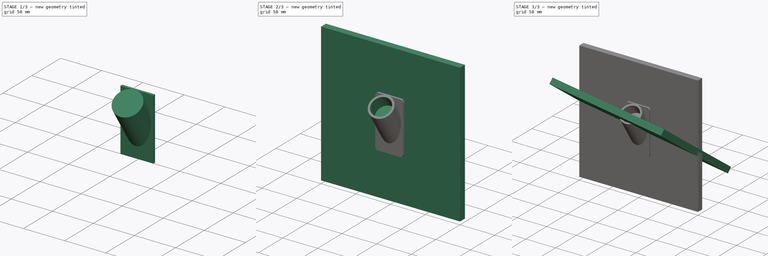
[diagram: build sequence overview — one tinted view per stage of 3, left to right]
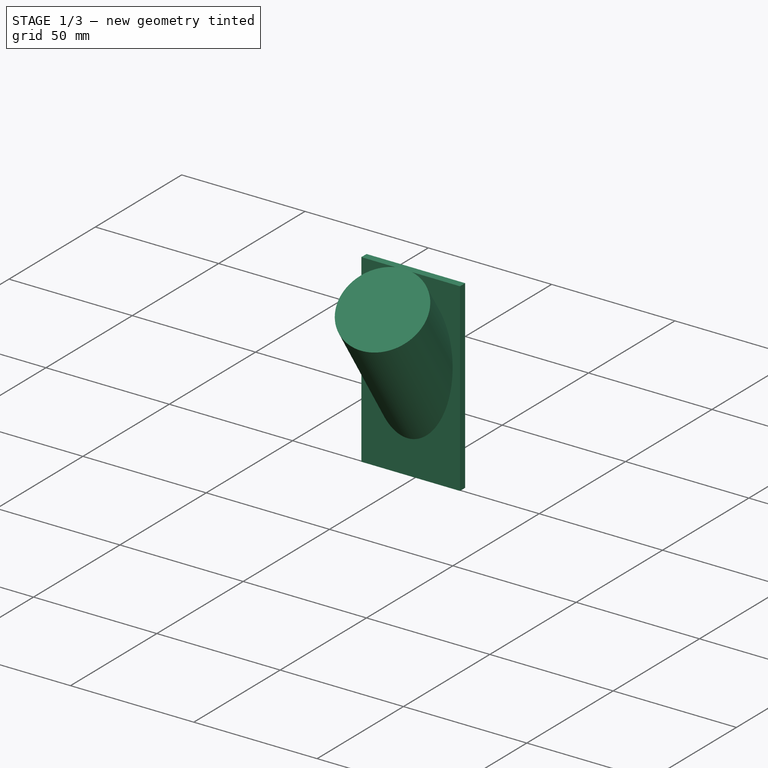
[diagram: stage 1 of 3 — iso view after this stage's code; geometry added in this stage tinted green]
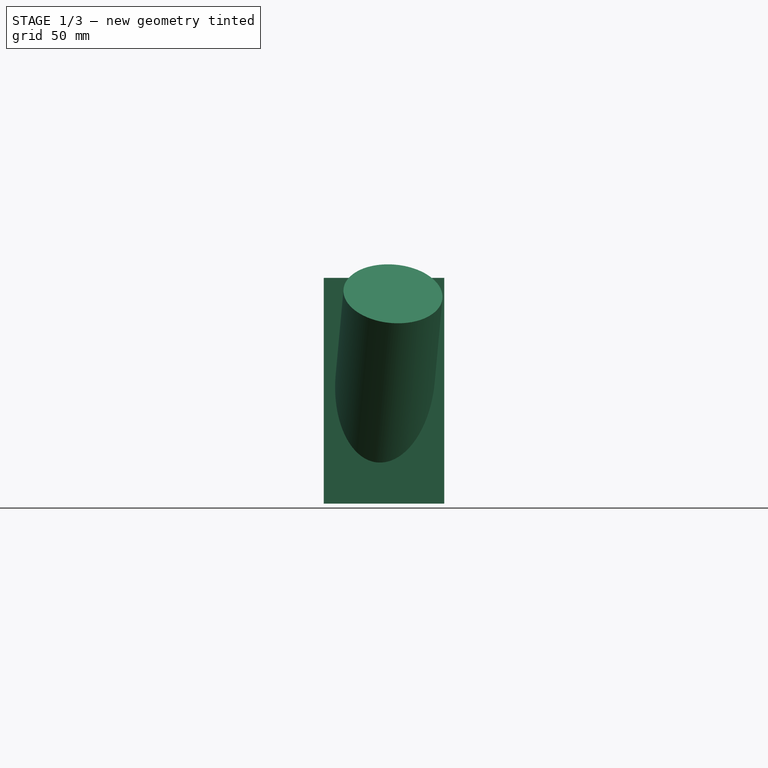
[diagram: stage 1 of 3 — front view after this stage's code; geometry added in this stage tinted green]
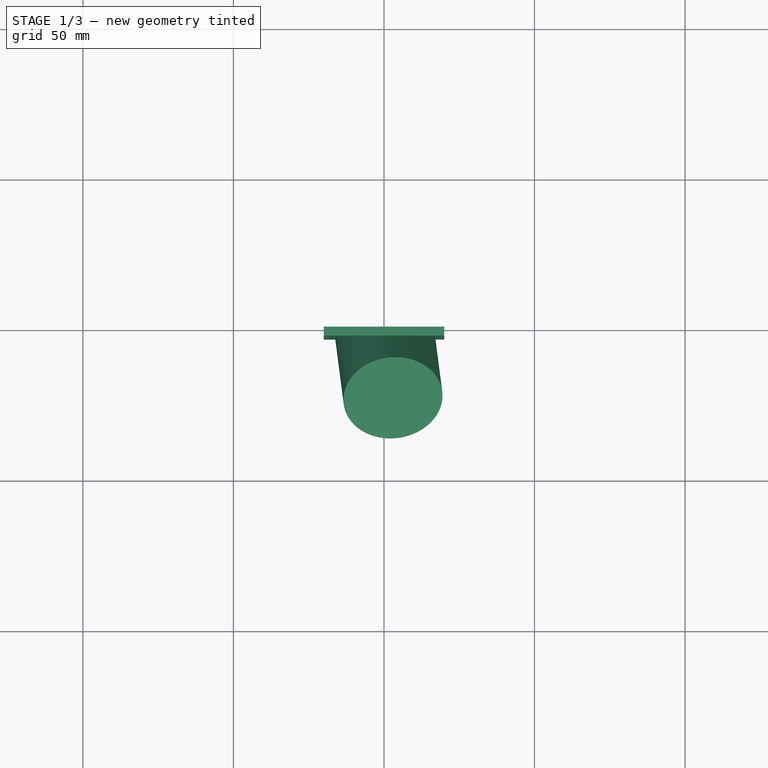
[diagram: stage 1 of 3 — top view after this stage's code; geometry added in this stage tinted green]
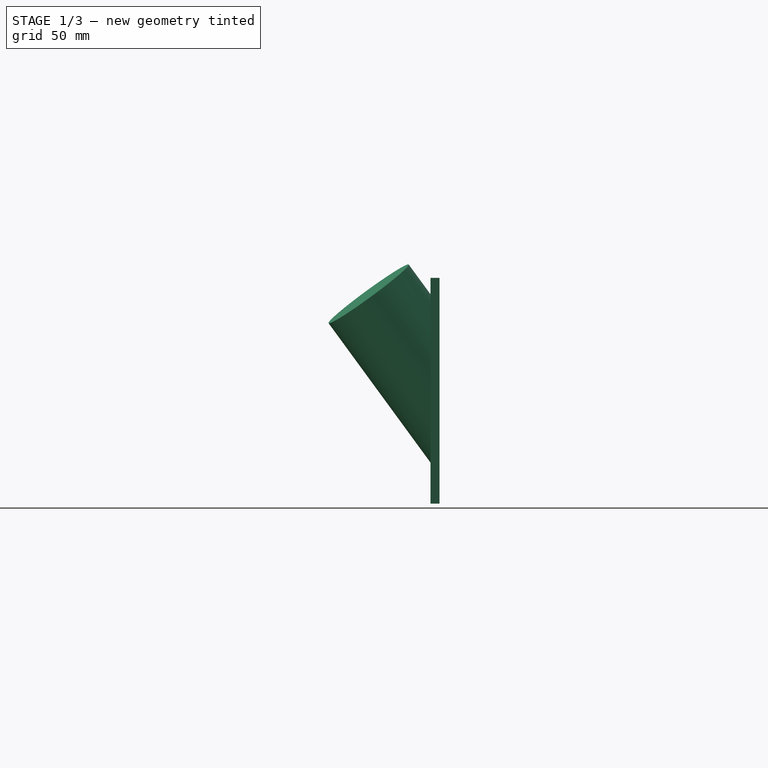
[diagram: stage 1 of 3 — right view after this stage's code; geometry added in this stage tinted green]
FCSTD DOCUMENT  (FreeCAD 1.0R39109 (Git))
Label: parametric_command_shower_rod_holder
License: All rights reserved
LicenseURL: http://en.wikipedia.org/wiki/All_rights_reserved
objects: Sketcher::SketchObject×5, PartDesign::Pad×4, PartDesign::Body×4, Spreadsheet::Sheet×1, Part::MultiFuse×1, App::Part×1, PartDesign::Line×1, PartDesign::Plane×1, PartDesign::Pocket×1, PartDesign::Fillet×1
note: 35 computed .brp shape members not serialized (recipe doc carries the construction recipe); baked Part::Feature solids carry a one-line shape summary decoded from their .brp

FEATURE [PartDesign::Body] Body003
  AllowCompound = false
  Origin = -> Origin004
  Placement = pos=(-25,-45,30) rot=(0,0,1;0rad)
FEATURE [App::Part] Part  label="WallRefSim"
  Group = -> [Body002,Body,Fusion,Body003]
  Origin = -> Origin002
FEATURE [Sketcher::SketchObject] Sketch002  label="BasePadSketch"
  ArcFitTolerance = 1e-06
  AttachmentSupport = -> [XZ_Plane001]
  FullyConstrained = true
  MakeInternals = false
  MapMode = 5
  Placement = pos=(0,0,0) rot=(1,0,0;1.5708rad)
  expr: Constraints[8] = <<$params>>.base_width
  expr: Constraints[9] = <<$params>>.base_height
  sketch-geometry (4):
    g0: LineSegment StartX=-20 StartY=37.5 StartZ=0 EndX=-20 EndY=-37.5 EndZ=0
    g1: LineSegment StartX=-20 StartY=-37.5 StartZ=0 EndX=20 EndY=-37.5 EndZ=0
    g2: LineSegment StartX=20 StartY=-37.5 StartZ=0 EndX=20 EndY=37.5 EndZ=0
    g3: LineSegment StartX=20 StartY=37.5 StartZ=0 EndX=-20 EndY=37.5 EndZ=0
  constraints (11):
    c: Coincident(g0,g1)
    c: Coincident(g1,g2)
    c: Coincident(g2,g3)
    c: Coincident(g3,g0)
    c: Vertical(g0)
    c: Vertical(g2)
    c: Horizontal(g1)
    c: Horizontal(g3)
    c: DistanceX(g3,g3) = 40
    c: DistanceY(g0,g0) = 75
    c: Symmetric(g0,g1,g-1)
FEATURE [PartDesign::Pad] Pad002  label="BasePad"
  Direction = (0,-1,2e-16)
  Length = 3
  Length2 = 10
  Placement = pos=(0,0,0) rot=(1,0,0;1.5708rad)
  Profile = -> Sketch002
  ReferenceAxis = -> Sketch002 [N_Axis]
  Refine = true
  Suppressed = false
  Type = 0
  expr: Length = <<$params>>.thickness
FEATURE [PartDesign::Line] DatumLine  label="WallPerpDatumLine"
  AttacherType = Attacher::AttachEngineLine
  AttachmentOffset = pos=(0,0,0) rot=(0.990404,0.123355,-0.062311;0.943279rad)
  AttachmentSupport = -> [Pad002]
  Length = 83
  MapMode = 42
  Placement = pos=(-2e-16,0,-2e-16) rot=(-0.059661,0.94828,0.311779;3.18082rad)
  ResizeMode = 1
  expr: .AttachmentOffset.Rotation.Pitch = -<<$params>>.angle_x
  expr: .AttachmentOffset.Rotation.Roll = <<$params>>.angle_y
  expr: Length = <<$params>>.thickness + <<$params>>.ext_depth * 2
FEATURE [PartDesign::Plane] DatumPlane  label="WallPerpDatumPlane"
  AttachmentOffset = pos=(0,0,40) rot=(0,0,1;0rad)
  AttachmentSupport = -> [DatumLine]
  Length = 50
  MapMode = 2
  Placement = pos=(2.975,-23.5496,32.1958) rot=(0.98031,0.061676,0.187588;0.647196rad)
  ResizeMode = 1
  Width = 50
  expr: .AttachmentOffset.Base.z = <<$params>>.ext_depth
FEATURE [Sketcher::SketchObject] Sketch003  label="BaseExtPadSketch"
  ArcFitTolerance = 1e-06
  AttachmentSupport = -> [DatumPlane]
  FullyConstrained = true
  MakeInternals = false
  MapMode = 5
  Placement = pos=(2.975,-23.5496,32.1958) rot=(0.98031,0.061676,0.187588;0.647196rad)
  expr: Constraints[1] = <<$params>>.diam + <<$params>>.thickness * 2
  sketch-geometry (1):
    g0: Circle CenterX=0 CenterY=0 CenterZ=0 NormalX=0 NormalY=0 NormalZ=1 AngleXU=0 Radius=16.5
  constraints (2):
    c: Coincident(g0,g-1)
    c: Diameter(g0) = 33
FEATURE [PartDesign::Pad] Pad003  label="BaseExtPad"
  BaseFeature = -> Pad002
  Direction = (0.0743751,-0.58874,0.804894)
  Length = 10
  Length2 = 10
  Offset = 3
  Placement = pos=(0,0,0) rot=(1,0,0;1.5708rad)
  Profile = -> Sketch003
  ReferenceAxis = -> Sketch003 [N_Axis]
  Refine = true
  Suppressed = false
  Type = 3
  UpToFace = -> Pad002 [Face6]
  expr: Offset = <<$params>>.thickness
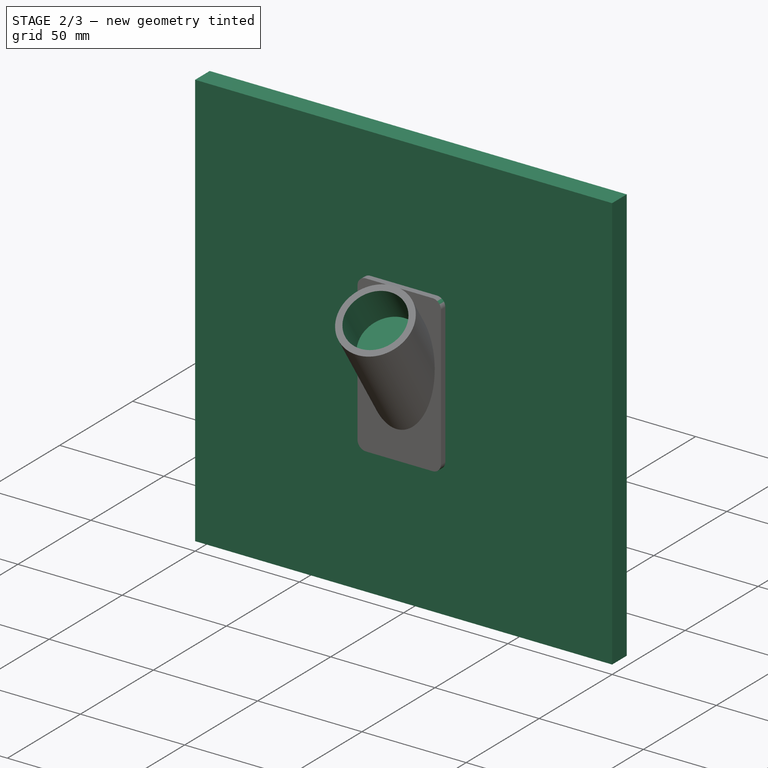
[diagram: stage 2 of 3 — iso view after this stage's code; geometry added in this stage tinted green]
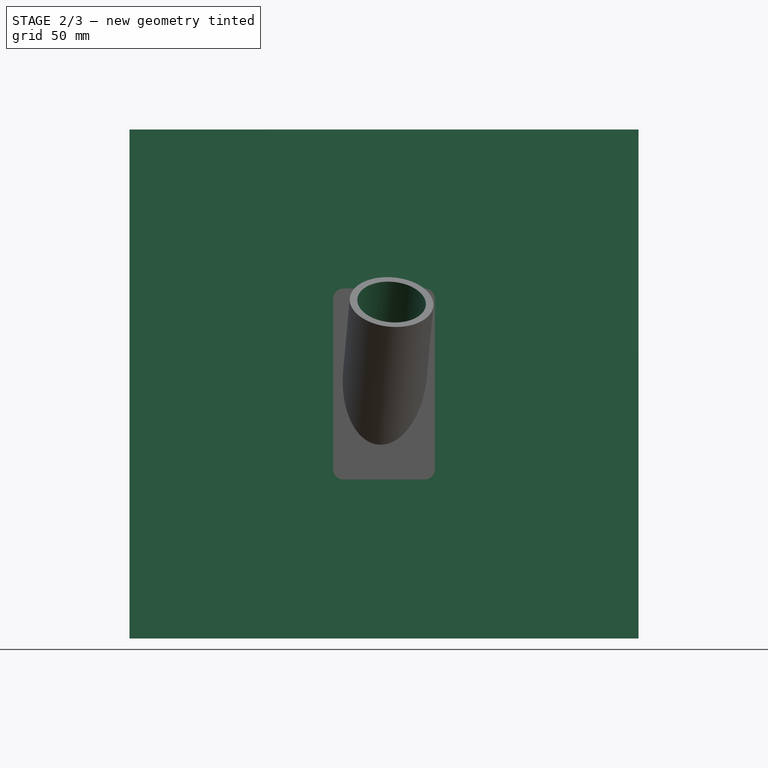
[diagram: stage 2 of 3 — front view after this stage's code; geometry added in this stage tinted green]
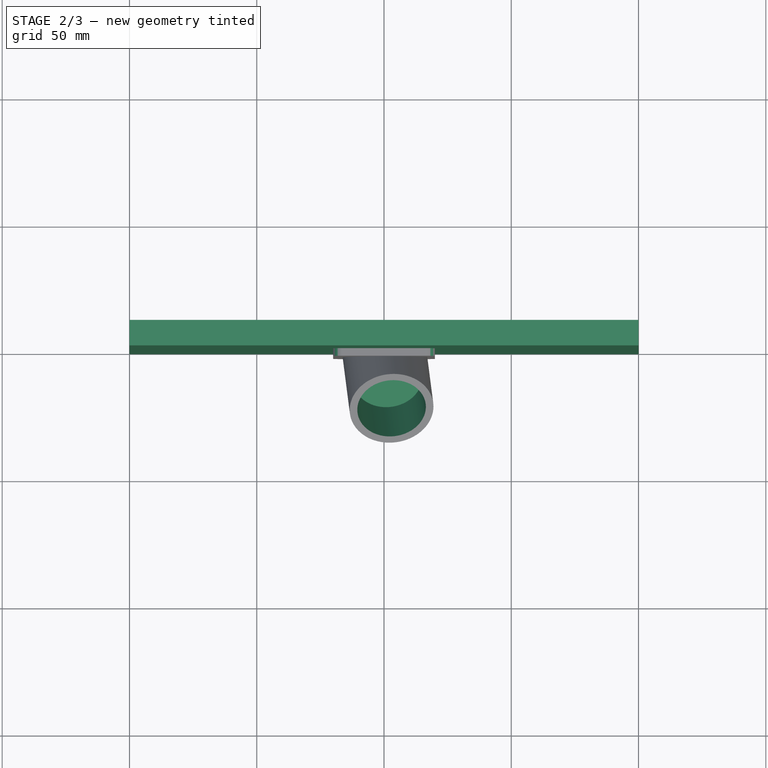
[diagram: stage 2 of 3 — top view after this stage's code; geometry added in this stage tinted green]
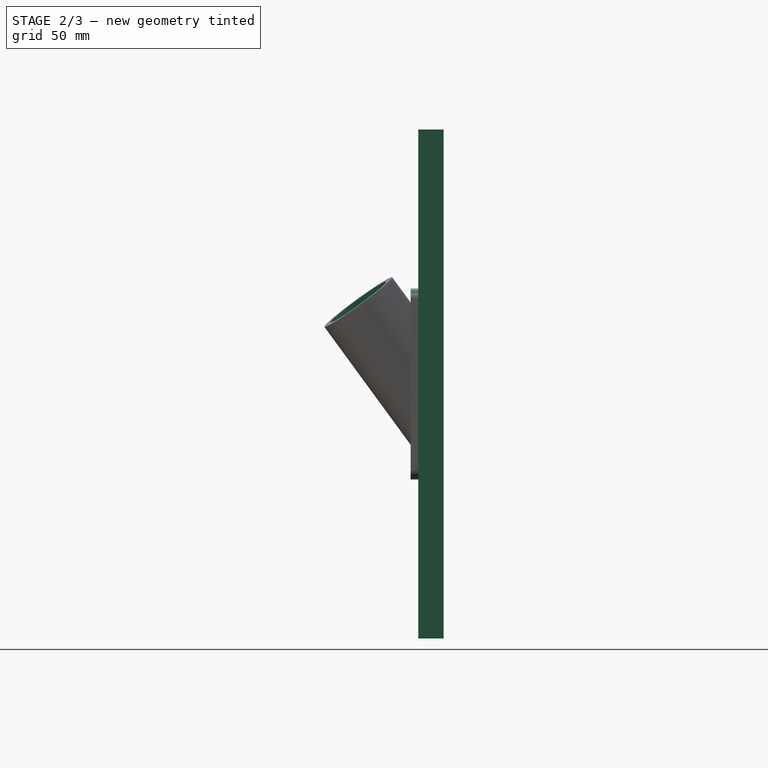
[diagram: stage 2 of 3 — right view after this stage's code; geometry added in this stage tinted green]
FEATURE [PartDesign::Body] Body  label="WallRefBodyA"
  AllowCompound = false
  Group = -> [Sketch,Pad]
  Origin = -> Origin
  Placement = pos=(0,0,0) rot=(-0.990404,-0.062311,0.123355;5.33991rad)
  Tip = -> Pad
FEATURE [Sketcher::SketchObject] Sketch001  label="WallRefBodyBPadSketch"
  ArcFitTolerance = 1e-06
  AttachmentSupport = -> [XZ_Plane001]
  FullyConstrained = true
  MakeInternals = false
  MapMode = 5
  Placement = pos=(0,0,0) rot=(1,0,0;1.5708rad)
  sketch-geometry (4):
    g0: LineSegment StartX=-100 StartY=100 StartZ=0 EndX=-100 EndY=-100 EndZ=0
    g1: LineSegment StartX=-100 StartY=-100 StartZ=0 EndX=100 EndY=-100 EndZ=0
    g2: LineSegment StartX=100 StartY=-100 StartZ=0 EndX=100 EndY=100 EndZ=0
    g3: LineSegment StartX=100 StartY=100 StartZ=0 EndX=-100 EndY=100 EndZ=0
  constraints (11):
    c: Coincident(g0,g1)
    c: Coincident(g1,g2)
    c: Coincident(g2,g3)
    c: Coincident(g3,g0)
    c: Vertical(g0)
    c: Vertical(g2)
    c: Horizontal(g1)
    c: Horizontal(g3)
    c: Distance(g0,g2) = 200
    c: Distance(g1,g3) = 200
    c: Symmetric(g0,g1,g-1)
FEATURE [PartDesign::Pad] Pad001  label="WallRefBodyBPad"
  Direction = (0,-1,2e-16)
  Length = 10
  Length2 = 10
  Placement = pos=(0,0,0) rot=(1,0,0;1.5708rad)
  Profile = -> Sketch001
  ReferenceAxis = -> Sketch001 [N_Axis]
  Refine = true
  Reversed = true
  Suppressed = false
  Type = 0
FEATURE [Sketcher::SketchObject] Sketch004  label="BaseExtCutSketch"
  ArcFitTolerance = 1e-06
  AttachmentSupport = -> [Pad003]
  FullyConstrained = true
  MakeInternals = false
  MapMode = 5
  Placement = pos=(2.975,-23.5496,32.1958) rot=(0.035376,-0.310346,0.949965;3.16471rad)
  expr: Constraints[1] = <<$params>>.diam
  sketch-geometry (1):
    g0: Circle CenterX=0 CenterY=0 CenterZ=0 NormalX=0 NormalY=0 NormalZ=1 AngleXU=0 Radius=13.5
  constraints (2):
    c: Coincident(g0,g-1)
    c: Diameter(g0) = 27
FEATURE [PartDesign::Pocket] Pocket  label="BaseExtCut"
  BaseFeature = -> Pad003
  Direction = (-0.0743751,0.58874,-0.804894)
  Length = 20
  Length2 = 5
  Placement = pos=(0,0,0) rot=(1,0,0;1.5708rad)
  Profile = -> Sketch004
  ReferenceAxis = -> Sketch004 [N_Axis]
  Refine = true
  Suppressed = false
  Type = 0
  expr: Length = <<$params>>.ext_cut_depth
FEATURE [PartDesign::Fillet] Fillet
  Base = -> Pocket [Edge2,Edge1,Edge8,Edge5]
  BaseFeature = -> Pocket
  Placement = pos=(0,0,0) rot=(1,0,0;1.5708rad)
  Radius = 4
  Refine = true
  SupportTransform = false
  Suppressed = false
  UseAllEdges = false
FEATURE [PartDesign::Body] Body001  label="Body"
  AllowCompound = false
  Group = -> [Sketch002,Pad002,DatumLine,DatumPlane,Sketch003,Pad003,Sketch004,Pocket,Fillet]
  Origin = -> Origin001
  Placement = pos=(-27.2568,-41.1163,33.8328) rot=(-0.990404,-0.062311,0.123355;5.33991rad)
  Tip = -> Fillet
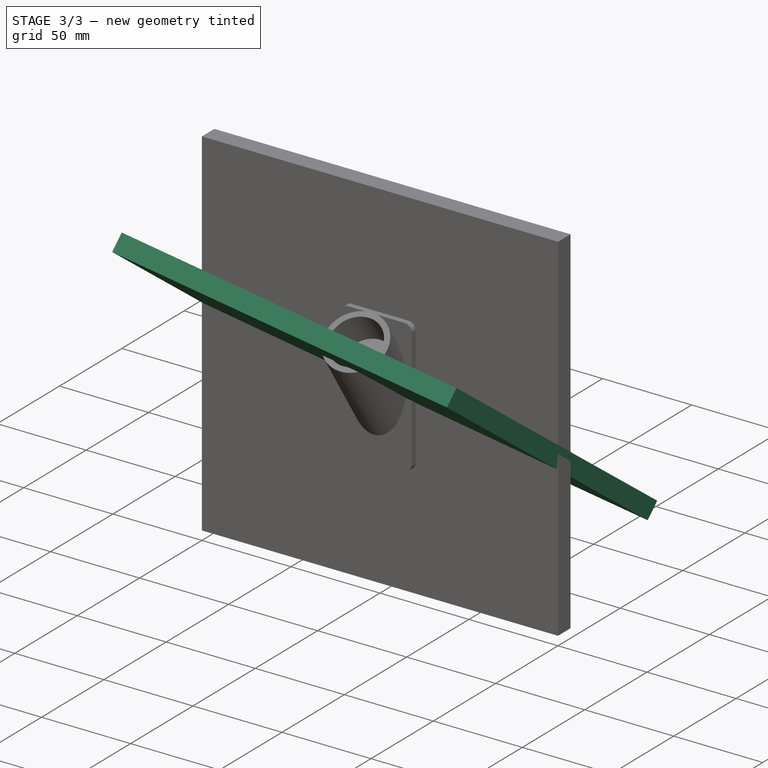
[diagram: stage 3 of 3 — iso view after this stage's code; geometry added in this stage tinted green]
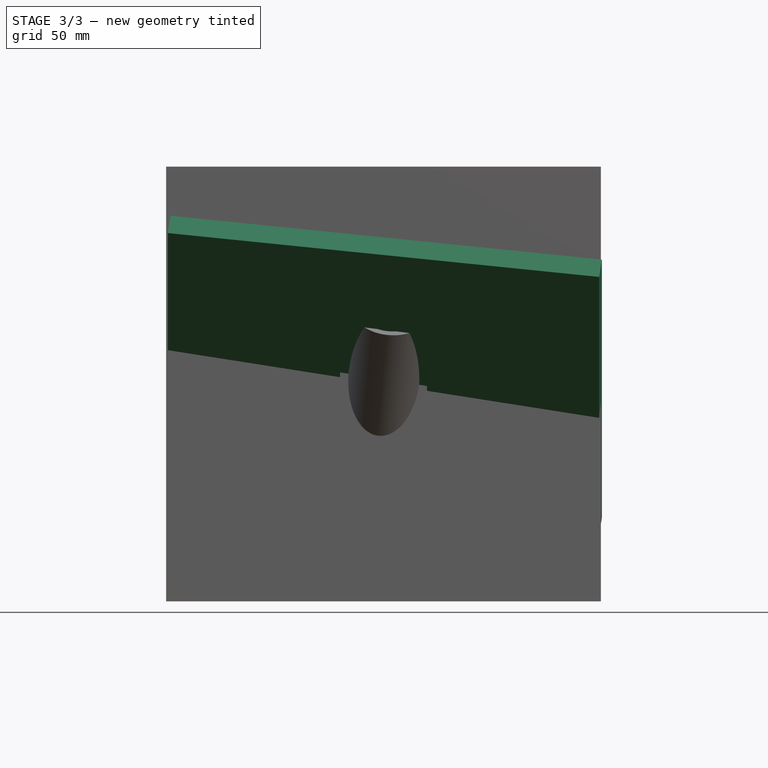
[diagram: stage 3 of 3 — front view after this stage's code; geometry added in this stage tinted green]
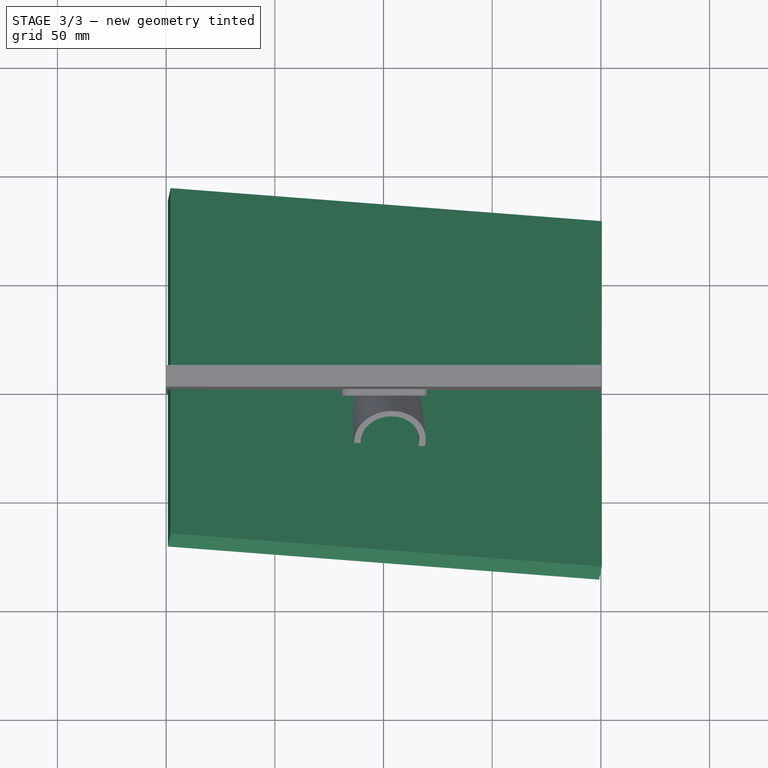
[diagram: stage 3 of 3 — top view after this stage's code; geometry added in this stage tinted green]
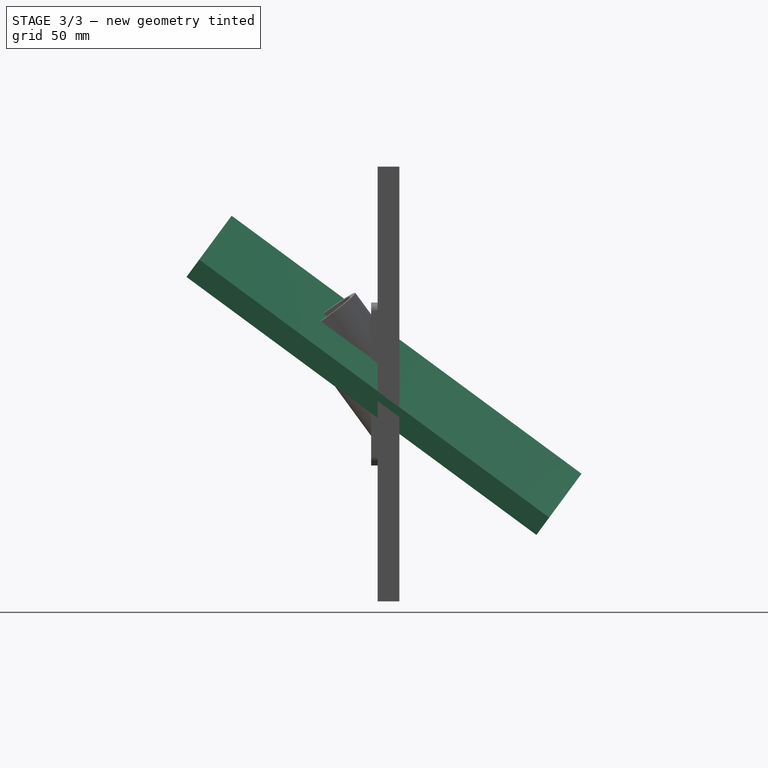
[diagram: stage 3 of 3 — right view after this stage's code; geometry added in this stage tinted green]
FEATURE [Spreadsheet::Sheet] Spreadsheet  label="$params"
  cells = A1='name; B1='value; D1='computed name; E1='computed_value; A2='tol; B2(tol)=0.1; A3='angle_x; B3(angle_x)=-7.2; A4='angle_y; B4(angle_y)=53.6; A5='base_width; B5(base_width)=40; A6='base_height; B6(base_height)=75; A7='diam; B7(diam)=27; A8='thickness; B8(thickness)=3; A9='ext_depth; B9(ext_depth)=40; A10='ext_cut_depth; B10(ext_cut_depth)=20
FEATURE [Sketcher::SketchObject] Sketch  label="WallPadSketch"
  ArcFitTolerance = 1e-06
  AttachmentSupport = -> [XZ_Plane]
  FullyConstrained = true
  MakeInternals = false
  MapMode = 5
  Placement = pos=(0,0,0) rot=(1,0,0;1.5708rad)
  sketch-geometry (4):
    g0: LineSegment StartX=-100 StartY=100 StartZ=0 EndX=-100 EndY=-100 EndZ=0
    g1: LineSegment StartX=-100 StartY=-100 StartZ=0 EndX=100 EndY=-100 EndZ=0
    g2: LineSegment StartX=100 StartY=-100 StartZ=0 EndX=100 EndY=100 EndZ=0
    g3: LineSegment StartX=100 StartY=100 StartZ=0 EndX=-100 EndY=100 EndZ=0
  constraints (11):
    c: Coincident(g0,g1)
    c: Coincident(g1,g2)
    c: Coincident(g2,g3)
    c: Coincident(g3,g0)
    c: Vertical(g0)
    c: Vertical(g2)
    c: Horizontal(g1)
    c: Horizontal(g3)
    c: Distance(g0,g2) = 200
    c: Distance(g1,g3) = 200
    c: Symmetric(g1,g0,g-1)
FEATURE [PartDesign::Pad] Pad  label="WallPad"
  Direction = (0,-1,0)
  Length = 10
  Length2 = 10
  Placement = pos=(0,0,0) rot=(1,0,0;1.5708rad)
  Profile = -> Sketch
  ReferenceAxis = -> Sketch [N_Axis]
  Refine = true
  Reversed = true
  Suppressed = false
  Type = 0
  UseCustomVector = true
FEATURE [PartDesign::Body] Body002  label="WallRefBodyB"
  AllowCompound = false
  Group = -> [Sketch001,Pad001]
  Origin = -> Origin003
  Tip = -> Pad001
FEATURE [Part::MultiFuse] Fusion  label="WallRefSimFusion"
  Refine = true
  Shapes = -> [Body,Body002]
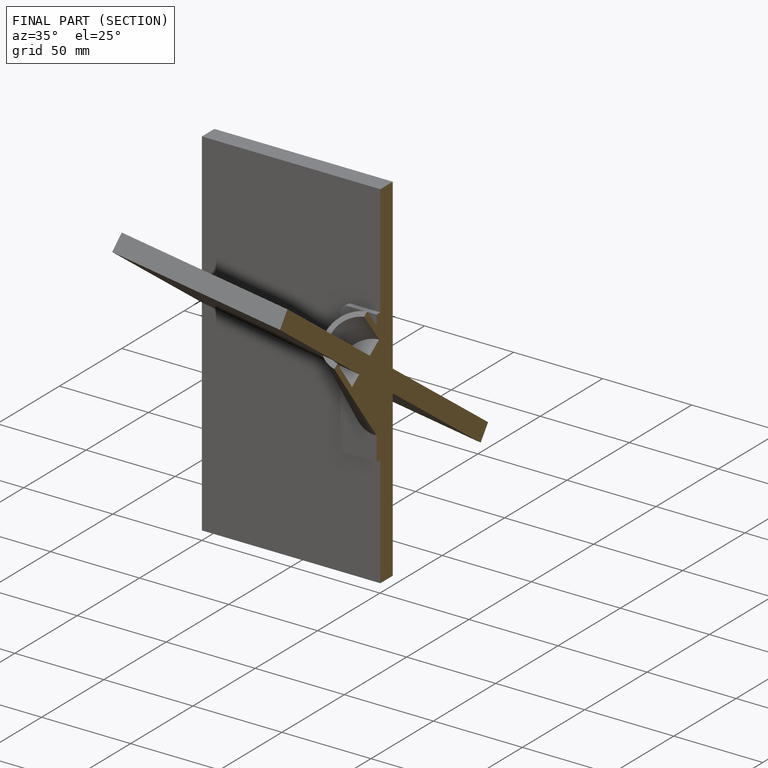
[diagram: finished part — half-section view (interior)]
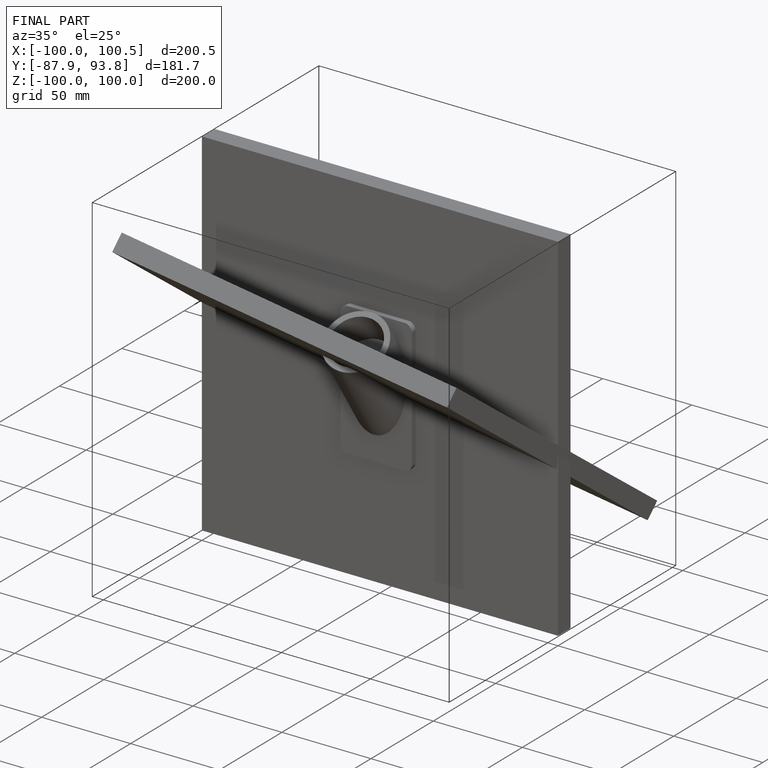
[diagram: finished part — iso view with bounding-box wireframe]
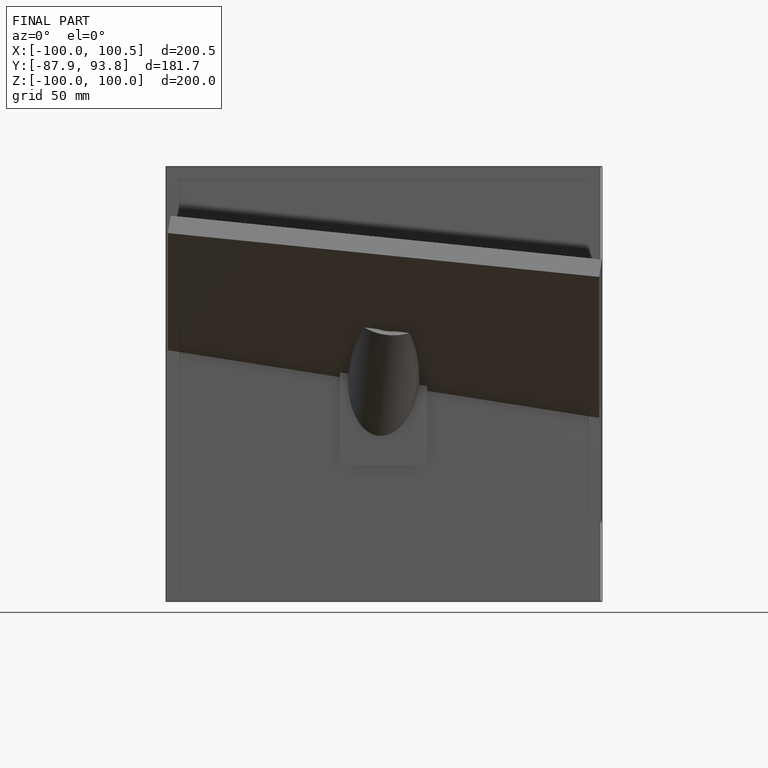
[diagram: finished part — front view with bounding-box wireframe]
